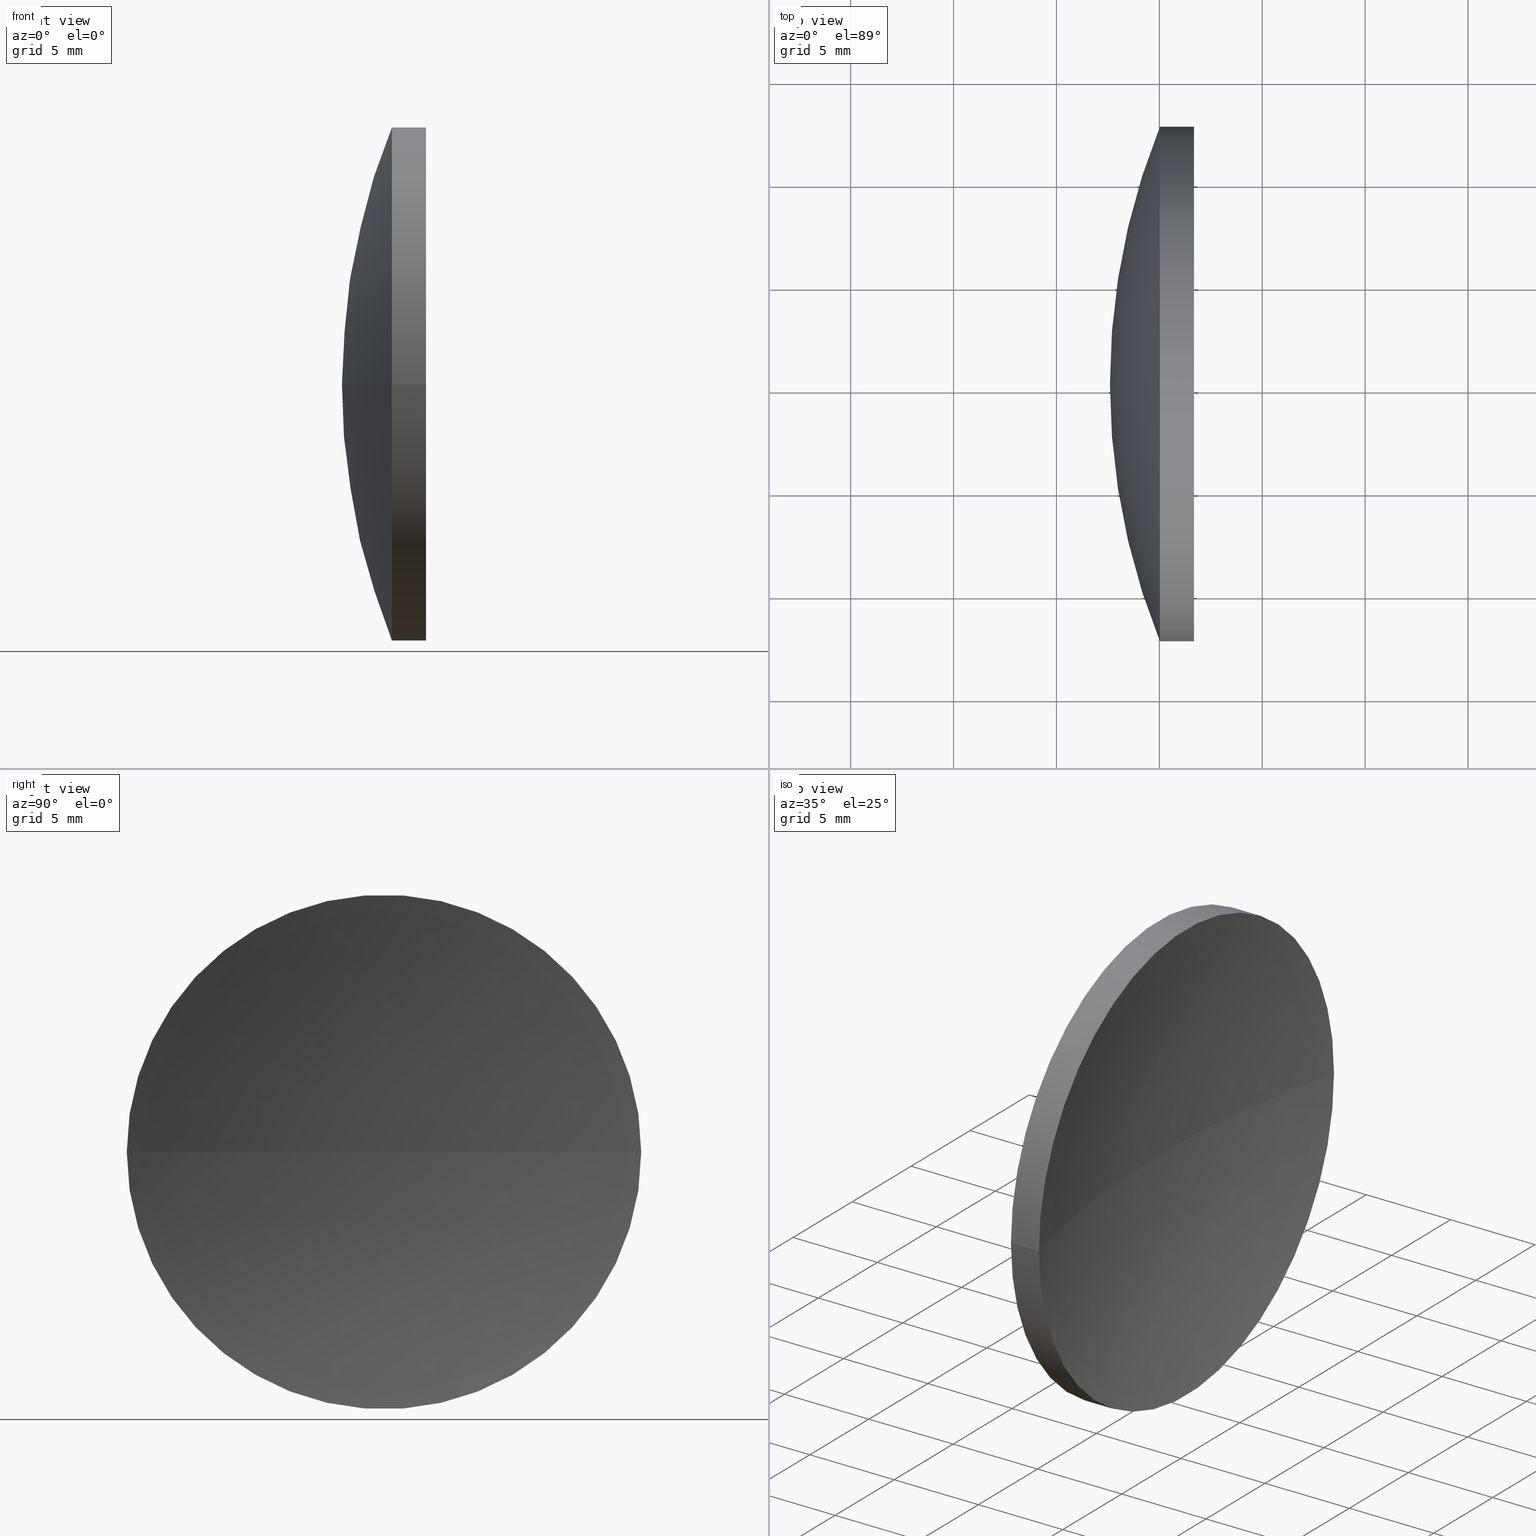
[diagram: canonical four-view strip — front | top / right | iso, engineering-drawing reading convention]
A machine part, canonical four-view strip (front | top / right | iso — engineering-drawing reading convention). The complete STEP part file that produces these views, byte-faithful:
ISO-10303-21;
HEADER;
FILE_DESCRIPTION (( 'STEP AP214' ),
    '1' );
FILE_NAME ('150051.STEP',
    '2019-07-05T08:46:47',
    ( '' ),
    ( '' ),
    'SwSTEP 2.0',
    'SolidWorks 2016',
    '' );
FILE_SCHEMA (( 'AUTOMOTIVE_DESIGN' ));
ENDSEC;

DATA;
#1 = AXIS2_PLACEMENT_3D ( 'NONE', #93, #137, #79 ) ;
#2 = PRODUCT_DEFINITION ( 'δ֪', '', #18, #36 ) ;
#3 = APPLICATION_CONTEXT ( 'automotive_design' ) ;
#4 = CARTESIAN_POINT ( 'NONE',  ( 115.9444912979631800, 52.71684047094033300, 0.0000000000000000000 ) ) ;
#5 = SURFACE_STYLE_USAGE ( .BOTH. , #96 ) ;
#6 = CARTESIAN_POINT ( 'NONE',  ( 125.0267678948440700, 65.21684047094032600, 0.0000000000000000000 ) ) ;
#7 = ORIENTED_EDGE ( 'NONE', *, *, #44, .T. ) ;
#8 = ADVANCED_FACE ( 'NONE', ( #171 ), #95, .T. ) ;
#9 = AXIS2_PLACEMENT_3D ( 'NONE', #63, #47, #157 ) ;
#10 = CIRCLE ( 'NONE', #1, 33.39999999999998400 ) ;
#11 = EDGE_CURVE ( 'NONE', #183, #57, #100, .T. ) ;
#12 = CARTESIAN_POINT ( 'NONE',  ( 175.0994978358744400, 65.21684047094031200, 0.0000000000000000000 ) ) ;
#13 = VECTOR ( 'NONE', #80, 1000.000000000000000 ) ;
#14 = DIRECTION ( 'NONE',  ( 1.110223024625157300E-015, -1.000000000000000000, 0.0000000000000000000 ) ) ;
#15 = VECTOR ( 'NONE', #170, 1000.000000000000000 ) ;
#16 = STYLED_ITEM ( 'NONE', ( #184 ), #87 ) ;
#17 = ORIENTED_EDGE ( 'NONE', *, *, #153, .T. ) ;
#18 = PRODUCT_DEFINITION_FORMATION_WITH_SPECIFIED_SOURCE ( '�κ�', '', #123, .NOT_KNOWN. ) ;
#19 = CARTESIAN_POINT ( 'NONE',  ( 155.9994978358744500, 65.21684047094032600, 0.0000000000000000000 ) ) ;
#20 = DIRECTION ( 'NONE',  ( 0.0000000000000000000, -1.000000000000000000, 0.0000000000000000000 ) ) ;
#21 = VERTEX_POINT ( 'NONE', #110 ) ;
#22 = CARTESIAN_POINT ( 'NONE',  ( 175.0994978358744400, 65.21684047094031200, 0.0000000000000000000 ) ) ;
#23 = DIRECTION ( 'NONE',  ( -1.000000000000000000, -6.937607244762875000E-016, -0.0000000000000000000 ) ) ;
#24 = SPHERICAL_SURFACE ( 'NONE', #148, 50.00000000000000700 ) ;
#25 = EDGE_CURVE ( 'NONE', #62, #57, #133, .T. ) ;
#26 = PRESENTATION_LAYER_ASSIGNMENT (  '', '', ( #16 ) ) ;
#27 = EDGE_LOOP ( 'NONE', ( #127, #188, #186 ) ) ;
#28 = FILL_AREA_STYLE ('',( #145 ) ) ;
#29 = DIRECTION ( 'NONE',  ( -0.0000000000000000000, 0.0000000000000000000, -1.000000000000000000 ) ) ;
#30 = STYLED_ITEM ( 'NONE', ( #114 ), #73 ) ;
#31 = CLOSED_SHELL ( 'NONE', ( #8, #173, #107, #37, #156, #43 ) ) ;
#32 = EDGE_LOOP ( 'NONE', ( #106, #66, #190, #71 ) ) ;
#33 = EDGE_CURVE ( 'NONE', #62, #21, #109, .T. ) ;
#34 = MECHANICAL_DESIGN_GEOMETRIC_PRESENTATION_REPRESENTATION (  '', ( #16 ), #132 ) ;
#35 = EDGE_LOOP ( 'NONE', ( #82, #160, #17 ) ) ;
#36 = PRODUCT_DEFINITION_CONTEXT ( 'detailed design', #185, 'design' ) ;
#37 = ADVANCED_FACE ( 'NONE', ( #136 ), #50, .T. ) ;
#38 = DIRECTION ( 'NONE',  ( 1.000000000000000000, 0.0000000000000000000, 0.0000000000000000000 ) ) ;
#39 =( LENGTH_UNIT ( ) NAMED_UNIT ( * ) SI_UNIT ( .MILLI., .METRE. ) );
#40 = AXIS2_PLACEMENT_3D ( 'NONE', #12, #84, #69 ) ;
#41 = COLOUR_RGB ( '',1.000000000000000000, 1.000000000000000000, 1.000000000000000000 ) ;
#42 = DIRECTION ( 'NONE',  ( 0.0000000000000000000, -1.000000000000000000, 0.0000000000000000000 ) ) ;
#43 = ADVANCED_FACE ( 'NONE', ( #176 ), #54, .T. ) ;
#44 = EDGE_CURVE ( 'NONE', #75, #62, #166, .T. ) ;
#45 = VERTEX_POINT ( 'NONE', #56 ) ;
#46 = ORIENTED_EDGE ( 'NONE', *, *, #153, .F. ) ;
#47 = DIRECTION ( 'NONE',  ( 0.0000000000000000000, 0.0000000000000000000, 1.000000000000000000 ) ) ;
#48 =( NAMED_UNIT ( * ) SI_UNIT ( $, .STERADIAN. ) SOLID_ANGLE_UNIT ( ) );
#49 = EDGE_CURVE ( 'NONE', #62, #75, #90, .T. ) ;
#50 = SPHERICAL_SURFACE ( 'NONE', #151, 33.39999999999998400 ) ;
#51 = DIRECTION ( 'NONE',  ( 0.0000000000000000000, 0.0000000000000000000, -1.000000000000000000 ) ) ;
#52 = DIRECTION ( 'NONE',  ( -0.0000000000000000000, 0.0000000000000000000, 1.000000000000000000 ) ) ;
#53 = EDGE_CURVE ( 'NONE', #75, #21, #149, .T. ) ;
#54 = CYLINDRICAL_SURFACE ( 'NONE', #140, 12.49999999999999100 ) ;
#55 = CARTESIAN_POINT ( 'NONE',  ( 126.6872060082817300, 65.21684047094034000, 0.0000000000000000000 ) ) ;
#56 = CARTESIAN_POINT ( 'NONE',  ( 122.5994978358744600, 65.21684047094029800, 0.0000000000000000000 ) ) ;
#57 = VERTEX_POINT ( 'NONE', #192 ) ;
#58 = PRODUCT_RELATED_PRODUCT_CATEGORY ( 'part', '', ( #123 ) ) ;
#59 = CIRCLE ( 'NONE', #134, 12.49999999999999100 ) ;
#60 = EDGE_LOOP ( 'NONE', ( #7, #83, #74, #108 ) ) ;
#61 = ORIENTED_EDGE ( 'NONE', *, *, #167, .T. ) ;
#62 = VERTEX_POINT ( 'NONE', #111 ) ;
#63 = CARTESIAN_POINT ( 'NONE',  ( 0.0000000000000000000, 0.0000000000000000000, 0.0000000000000000000 ) ) ;
#64 =( NAMED_UNIT ( * ) PLANE_ANGLE_UNIT ( ) SI_UNIT ( $, .RADIAN. ) );
#65 =( NAMED_UNIT ( * ) PLANE_ANGLE_UNIT ( ) SI_UNIT ( $, .RADIAN. ) );
#66 = ORIENTED_EDGE ( 'NONE', *, *, #49, .T. ) ;
#67 = ORIENTED_EDGE ( 'NONE', *, *, #53, .F. ) ;
#68 = LINE ( 'NONE', #4, #15 ) ;
#69 = DIRECTION ( 'NONE',  ( 0.0000000000000000000, 1.000000000000000000, 1.224646799147353000E-016 ) ) ;
#70 = CARTESIAN_POINT ( 'NONE',  ( 126.6872060082817300, 65.21684047094034000, 0.0000000000000000000 ) ) ;
#71 = ORIENTED_EDGE ( 'NONE', *, *, #167, .F. ) ;
#72 = DIRECTION ( 'NONE',  ( 0.0000000000000000000, -0.0000000000000000000, 1.000000000000000000 ) ) ;
#73 = MANIFOLD_SOLID_BREP ( '��ת1', #31 ) ;
#74 = ORIENTED_EDGE ( 'NONE', *, *, #11, .F. ) ;
#75 = VERTEX_POINT ( 'NONE', #131 ) ;
#76 = AXIS2_PLACEMENT_3D ( 'NONE', #179, #72, #159 ) ;
#77 = CIRCLE ( 'NONE', #112, 33.39999999999998400 ) ;
#78 = DIRECTION ( 'NONE',  ( -5.551115123125780700E-016, 1.000000000000000000, 0.0000000000000000000 ) ) ;
#79 = DIRECTION ( 'NONE',  ( 0.0000000000000000000, 1.000000000000000000, 1.224646799147353200E-016 ) ) ;
#80 = DIRECTION ( 'NONE',  ( -1.000000000000000000, -6.937607244762875000E-016, -0.0000000000000000000 ) ) ;
#81 = DIRECTION ( 'NONE',  ( 1.110223024625157300E-015, -1.000000000000000000, 0.0000000000000000000 ) ) ;
#82 = ORIENTED_EDGE ( 'NONE', *, *, #147, .F. ) ;
#83 = ORIENTED_EDGE ( 'NONE', *, *, #25, .T. ) ;
#84 = DIRECTION ( 'NONE',  ( -8.496118506040342700E-032, 1.224646799147353200E-016, -1.000000000000000000 ) ) ;
#85 = PRODUCT_DEFINITION_SHAPE ( 'NONE', 'NONE',  #2 ) ;
#86 = DIRECTION ( 'NONE',  ( 0.0000000000000000000, -1.000000000000000000, 0.0000000000000000000 ) ) ;
#87 = ADVANCED_BREP_SHAPE_REPRESENTATION ( '150051', ( #73, #9 ), #189 ) ;
#88 = DIRECTION ( 'NONE',  ( 0.0000000000000000000, -1.000000000000000000, 0.0000000000000000000 ) ) ;
#89 = PRESENTATION_LAYER_ASSIGNMENT (  '', '', ( #30 ) ) ;
#90 = CIRCLE ( 'NONE', #124, 12.49999999999999100 ) ;
#91 = FACE_OUTER_BOUND ( 'NONE', #139, .T. ) ;
#92 = FILL_AREA_STYLE_COLOUR ( '', #41 ) ;
#93 = CARTESIAN_POINT ( 'NONE',  ( 155.9994978358744500, 65.21684047094032600, 0.0000000000000000000 ) ) ;
#94 =( NAMED_UNIT ( * ) SI_UNIT ( $, .STERADIAN. ) SOLID_ANGLE_UNIT ( ) );
#95 = CYLINDRICAL_SURFACE ( 'NONE', #158, 12.49999999999999100 ) ;
#96 = SURFACE_SIDE_STYLE ('',( #181 ) ) ;
#97 = CARTESIAN_POINT ( 'NONE',  ( 125.0267678948440700, 65.21684047094032600, 0.0000000000000000000 ) ) ;
#98 = DIRECTION ( 'NONE',  ( -1.000000000000000000, -6.937607244762875000E-016, -0.0000000000000000000 ) ) ;
#99 = AXIS2_PLACEMENT_3D ( 'NONE', #97, #141, #42 ) ;
#100 = CIRCLE ( 'NONE', #99, 12.49999999999999100 ) ;
#101 =( NAMED_UNIT ( * ) PLANE_ANGLE_UNIT ( ) SI_UNIT ( $, .RADIAN. ) );
#102 = DIRECTION ( 'NONE',  ( -8.310052579529618900E-016, 1.000000000000000000, 0.0000000000000000000 ) ) ;
#103 = ORIENTED_EDGE ( 'NONE', *, *, #147, .T. ) ;
#104 = UNCERTAINTY_MEASURE_WITH_UNIT (LENGTH_MEASURE( 1.000000000000000100E-005 ), #39, 'distance_accuracy_value', 'NONE');
#105 =( GEOMETRIC_REPRESENTATION_CONTEXT ( 3 ) GLOBAL_UNCERTAINTY_ASSIGNED_CONTEXT ( ( #146 ) ) GLOBAL_UNIT_ASSIGNED_CONTEXT ( ( #128, #101, #161 ) ) REPRESENTATION_CONTEXT ( 'NONE', 'WORKASPACE' ) );
#106 = ORIENTED_EDGE ( 'NONE', *, *, #25, .F. ) ;
#107 = ADVANCED_FACE ( 'NONE', ( #113 ), #168, .T. ) ;
#108 = ORIENTED_EDGE ( 'NONE', *, *, #164, .F. ) ;
#109 = CIRCLE ( 'NONE', #76, 50.00000000000001400 ) ;
#110 = CARTESIAN_POINT ( 'NONE',  ( 125.0994978358744300, 65.21684047094028400, 0.0000000000000000000 ) ) ;
#111 = CARTESIAN_POINT ( 'NONE',  ( 126.6872060082817300, 77.71684047094032600, 0.0000000000000000000 ) ) ;
#112 = AXIS2_PLACEMENT_3D ( 'NONE', #19, #52, #38 ) ;
#113 = FACE_OUTER_BOUND ( 'NONE', #165, .T. ) ;
#114 = PRESENTATION_STYLE_ASSIGNMENT (( #178 ) ) ;
#115 = UNCERTAINTY_MEASURE_WITH_UNIT (LENGTH_MEASURE( 1.000000000000000100E-005 ), #155, 'distance_accuracy_value', 'NONE');
#116 = AXIS2_PLACEMENT_3D ( 'NONE', #70, #162, #88 ) ;
#117 = SPHERICAL_SURFACE ( 'NONE', #163, 50.00000000000000700 ) ;
#118 = CARTESIAN_POINT ( 'NONE',  ( 175.0994978358744400, 65.21684047094031200, 0.0000000000000000000 ) ) ;
#119 = COLOUR_RGB ( '',1.000000000000000000, 1.000000000000000000, 1.000000000000000000 ) ;
#120 = SURFACE_STYLE_FILL_AREA ( #28 ) ;
#121 = APPLICATION_PROTOCOL_DEFINITION ( 'draft international standard', 'automotive_design', 1998, #3 ) ;
#122 = DIRECTION ( 'NONE',  ( -5.551115123125780700E-016, 1.000000000000000000, 0.0000000000000000000 ) ) ;
#123 = PRODUCT ( '150051', '150051', '', ( #174 ) ) ;
#124 = AXIS2_PLACEMENT_3D ( 'NONE', #55, #129, #86 ) ;
#125 = FACE_OUTER_BOUND ( 'NONE', #27, .T. ) ;
#126 = CARTESIAN_POINT ( 'NONE',  ( 155.9994978358744500, 65.21684047094032600, 0.0000000000000000000 ) ) ;
#127 = ORIENTED_EDGE ( 'NONE', *, *, #44, .F. ) ;
#128 =( LENGTH_UNIT ( ) NAMED_UNIT ( * ) SI_UNIT ( .MILLI., .METRE. ) );
#129 = DIRECTION ( 'NONE',  ( -1.000000000000000000, -6.937607244762875000E-016, -0.0000000000000000000 ) ) ;
#130 = SHAPE_DEFINITION_REPRESENTATION ( #85, #87 ) ;
#131 = CARTESIAN_POINT ( 'NONE',  ( 126.6872060082817600, 52.71684047094030500, -1.530808498934188600E-015 ) ) ;
#132 =( GEOMETRIC_REPRESENTATION_CONTEXT ( 3 ) GLOBAL_UNCERTAINTY_ASSIGNED_CONTEXT ( ( #104 ) ) GLOBAL_UNIT_ASSIGNED_CONTEXT ( ( #39, #64, #48 ) ) REPRESENTATION_CONTEXT ( 'NONE', 'WORKASPACE' ) );
#133 = LINE ( 'NONE', #143, #13 ) ;
#134 = AXIS2_PLACEMENT_3D ( 'NONE', #6, #23, #20 ) ;
#135 = DIRECTION ( 'NONE',  ( 0.0000000000000000000, 0.0000000000000000000, -1.000000000000000000 ) ) ;
#136 = FACE_OUTER_BOUND ( 'NONE', #35, .T. ) ;
#137 = DIRECTION ( 'NONE',  ( -8.496118506040342700E-032, 1.224646799147353200E-016, -1.000000000000000000 ) ) ;
#138 = DIRECTION ( 'NONE',  ( -0.0000000000000000000, 0.0000000000000000000, -1.000000000000000000 ) ) ;
#139 = EDGE_LOOP ( 'NONE', ( #67, #142, #150 ) ) ;
#140 = AXIS2_PLACEMENT_3D ( 'NONE', #144, #191, #14 ) ;
#141 = DIRECTION ( 'NONE',  ( -1.000000000000000000, -6.937607244762875000E-016, -0.0000000000000000000 ) ) ;
#142 = ORIENTED_EDGE ( 'NONE', *, *, #49, .F. ) ;
#143 = CARTESIAN_POINT ( 'NONE',  ( 115.9444912979631500, 77.71684047094032600, 1.530808498934190100E-015 ) ) ;
#144 = CARTESIAN_POINT ( 'NONE',  ( 115.9444912979631700, 65.21684047094032600, 0.0000000000000000000 ) ) ;
#145 = FILL_AREA_STYLE_COLOUR ( '', #119 ) ;
#146 = UNCERTAINTY_MEASURE_WITH_UNIT (LENGTH_MEASURE( 1.000000000000000100E-005 ), #128, 'distance_accuracy_value', 'NONE');
#147 = EDGE_CURVE ( 'NONE', #183, #45, #10, .T. ) ;
#148 = AXIS2_PLACEMENT_3D ( 'NONE', #118, #135, #122 ) ;
#149 = CIRCLE ( 'NONE', #40, 50.00000000000001400 ) ;
#150 = ORIENTED_EDGE ( 'NONE', *, *, #33, .T. ) ;
#151 = AXIS2_PLACEMENT_3D ( 'NONE', #126, #29, #102 ) ;
#152 = APPLICATION_PROTOCOL_DEFINITION ( 'draft international standard', 'automotive_design', 1998, #185 ) ;
#153 = EDGE_CURVE ( 'NONE', #57, #45, #77, .T. ) ;
#154 = DIRECTION ( 'NONE',  ( -8.310052579529618900E-016, 1.000000000000000000, 0.0000000000000000000 ) ) ;
#155 =( LENGTH_UNIT ( ) NAMED_UNIT ( * ) SI_UNIT ( .MILLI., .METRE. ) );
#156 = ADVANCED_FACE ( 'NONE', ( #91 ), #117, .F. ) ;
#157 = DIRECTION ( 'NONE',  ( 1.000000000000000000, 0.0000000000000000000, 0.0000000000000000000 ) ) ;
#158 = AXIS2_PLACEMENT_3D ( 'NONE', #175, #98, #81 ) ;
#159 = DIRECTION ( 'NONE',  ( 1.000000000000000000, 0.0000000000000000000, 0.0000000000000000000 ) ) ;
#160 = ORIENTED_EDGE ( 'NONE', *, *, #11, .T. ) ;
#161 =( NAMED_UNIT ( * ) SI_UNIT ( $, .STERADIAN. ) SOLID_ANGLE_UNIT ( ) );
#162 = DIRECTION ( 'NONE',  ( -1.000000000000000000, -6.937607244762875000E-016, -0.0000000000000000000 ) ) ;
#163 = AXIS2_PLACEMENT_3D ( 'NONE', #22, #51, #78 ) ;
#164 = EDGE_CURVE ( 'NONE', #75, #183, #68, .T. ) ;
#165 = EDGE_LOOP ( 'NONE', ( #61, #103, #46 ) ) ;
#166 = CIRCLE ( 'NONE', #116, 12.49999999999999100 ) ;
#167 = EDGE_CURVE ( 'NONE', #57, #183, #59, .T. ) ;
#168 = SPHERICAL_SURFACE ( 'NONE', #182, 33.39999999999998400 ) ;
#169 = MECHANICAL_DESIGN_GEOMETRIC_PRESENTATION_REPRESENTATION (  '', ( #30 ), #105 ) ;
#170 = DIRECTION ( 'NONE',  ( -1.000000000000000000, -6.937607244762875000E-016, -0.0000000000000000000 ) ) ;
#171 = FACE_OUTER_BOUND ( 'NONE', #60, .T. ) ;
#172 = FILL_AREA_STYLE ('',( #92 ) ) ;
#173 = ADVANCED_FACE ( 'NONE', ( #125 ), #24, .F. ) ;
#174 = PRODUCT_CONTEXT ( 'NONE', #3, 'mechanical' ) ;
#175 = CARTESIAN_POINT ( 'NONE',  ( 115.9444912979631700, 65.21684047094032600, 0.0000000000000000000 ) ) ;
#176 = FACE_OUTER_BOUND ( 'NONE', #32, .T. ) ;
#177 = CARTESIAN_POINT ( 'NONE',  ( 155.9994978358744500, 65.21684047094032600, 0.0000000000000000000 ) ) ;
#178 = SURFACE_STYLE_USAGE ( .BOTH. , #180 ) ;
#179 = CARTESIAN_POINT ( 'NONE',  ( 175.0994978358744400, 65.21684047094031200, 0.0000000000000000000 ) ) ;
#180 = SURFACE_SIDE_STYLE ('',( #120 ) ) ;
#181 = SURFACE_STYLE_FILL_AREA ( #172 ) ;
#182 = AXIS2_PLACEMENT_3D ( 'NONE', #177, #138, #154 ) ;
#183 = VERTEX_POINT ( 'NONE', #187 ) ;
#184 = PRESENTATION_STYLE_ASSIGNMENT (( #5 ) ) ;
#185 = APPLICATION_CONTEXT ( 'automotive_design' ) ;
#186 = ORIENTED_EDGE ( 'NONE', *, *, #33, .F. ) ;
#187 = CARTESIAN_POINT ( 'NONE',  ( 125.0267678948440700, 52.71684047094032600, -1.530808498934189000E-015 ) ) ;
#188 = ORIENTED_EDGE ( 'NONE', *, *, #53, .T. ) ;
#189 =( GEOMETRIC_REPRESENTATION_CONTEXT ( 3 ) GLOBAL_UNCERTAINTY_ASSIGNED_CONTEXT ( ( #115 ) ) GLOBAL_UNIT_ASSIGNED_CONTEXT ( ( #155, #65, #94 ) ) REPRESENTATION_CONTEXT ( 'NONE', 'WORKASPACE' ) );
#190 = ORIENTED_EDGE ( 'NONE', *, *, #164, .T. ) ;
#191 = DIRECTION ( 'NONE',  ( -1.000000000000000000, -6.937607244762875000E-016, -0.0000000000000000000 ) ) ;
#192 = CARTESIAN_POINT ( 'NONE',  ( 125.0267678948440700, 77.71684047094031200, 0.0000000000000000000 ) ) ;
ENDSEC;
END-ISO-10303-21;
